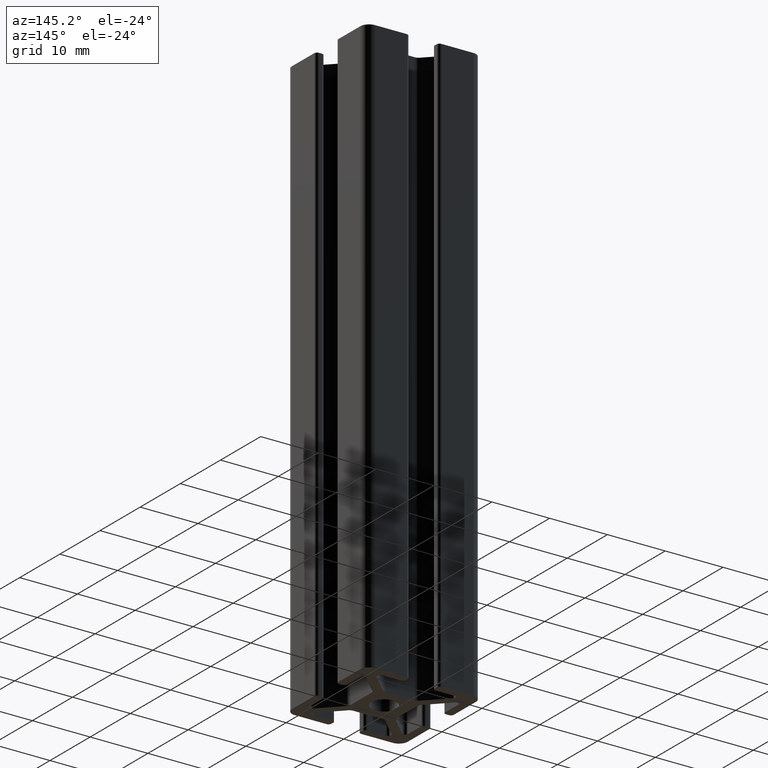
[diagram: clean part render]
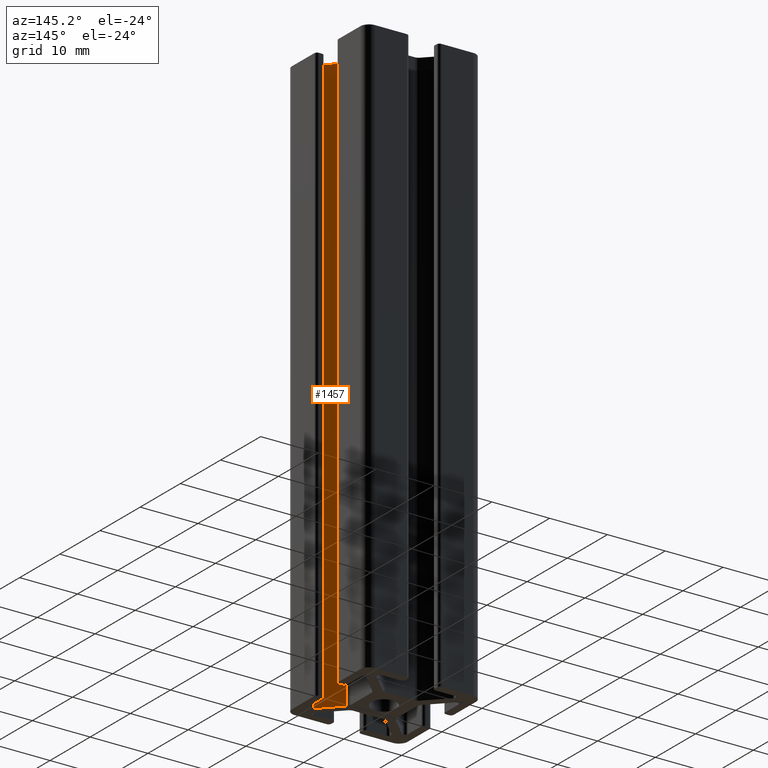
[diagram: same view with one face highlighted and labeled with its STEP entity id]
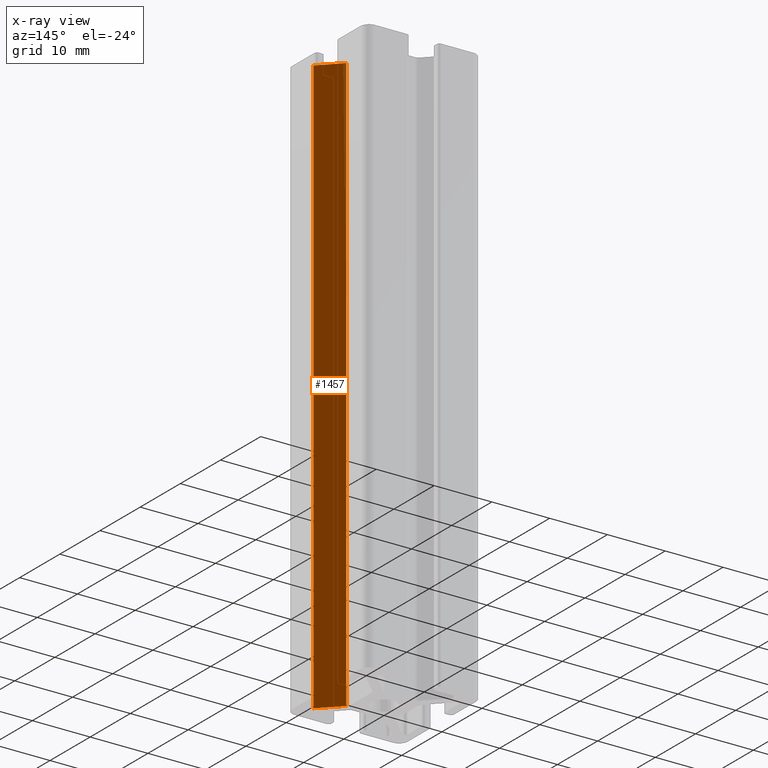
[diagram: x-ray of the same camera — body ghosted, the highlighted face saturated]
A machine part, auxiliary view. The second image highlights one B-rep face of the part: STEP entity #1457.
The next image is the same camera in x-ray: the body ghosted, the highlighted face saturated — about 2% of this face is hidden behind the body in this view.
In plain terms, the highlighted planar face has unit normal (-0.7071, -0.7071, 0).
Its self-contained STEP definition (entity closure, byte-faithful):
#40=PLANE('',#1588);
#105=FACE_OUTER_BOUND('',#181,.T.);
#181=EDGE_LOOP('',(#1129,#1130,#1131,#1132));
#304=LINE('',#2382,#448);
#305=LINE('',#2386,#449);
#306=LINE('',#2388,#450);
#307=LINE('',#2389,#451);
#448=VECTOR('',#1935,100.);
#449=VECTOR('',#1940,4.74264068711929);
#450=VECTOR('',#1941,100.);
#451=VECTOR('',#1942,4.74264068711929);
#675=VERTEX_POINT('',#2379);
#676=VERTEX_POINT('',#2381);
#677=VERTEX_POINT('',#2385);
#678=VERTEX_POINT('',#2387);
#865=EDGE_CURVE('',#676,#675,#304,.T.);
#867=EDGE_CURVE('',#677,#675,#305,.T.);
#868=EDGE_CURVE('',#678,#677,#306,.T.);
#869=EDGE_CURVE('',#676,#678,#307,.T.);
#1129=ORIENTED_EDGE('',*,*,#867,.F.);
#1130=ORIENTED_EDGE('',*,*,#868,.F.);
#1131=ORIENTED_EDGE('',*,*,#869,.F.);
#1132=ORIENTED_EDGE('',*,*,#865,.T.);
#1457=ADVANCED_FACE('',(#105),#40,.F.);
#1588=AXIS2_PLACEMENT_3D('',#2384,#1938,#1939);
#1935=DIRECTION('',(0.,0.,1.));
#1938=DIRECTION('center_axis',(-0.707106781186548,-0.707106781186547,0.));
#1939=DIRECTION('ref_axis',(0.707106781186547,-0.707106781186548,0.));
#1940=DIRECTION('',(-0.707106781186547,0.707106781186548,0.));
#1941=DIRECTION('',(0.,0.,1.));
#1942=DIRECTION('',(0.707106781186547,-0.707106781186548,0.));
#2379=CARTESIAN_POINT('',(4.29289321881345,-3.23223304703363,100.));
#2381=CARTESIAN_POINT('',(4.29289321881345,-3.23223304703363,0.));
#2382=CARTESIAN_POINT('',(4.29289321881345,-3.23223304703363,0.));
#2384=CARTESIAN_POINT('Origin',(4.29289321881345,-3.23223304703363,0.));
#2385=CARTESIAN_POINT('',(7.64644660940673,-6.58578643762691,100.));
#2386=CARTESIAN_POINT('',(2.41161165235168,-1.35095148057186,100.));
#2387=CARTESIAN_POINT('',(7.64644660940673,-6.58578643762691,0.));
#2388=CARTESIAN_POINT('',(7.64644660940673,-6.58578643762691,0.));
#2389=CARTESIAN_POINT('',(2.41161165235168,-1.35095148057186,0.));